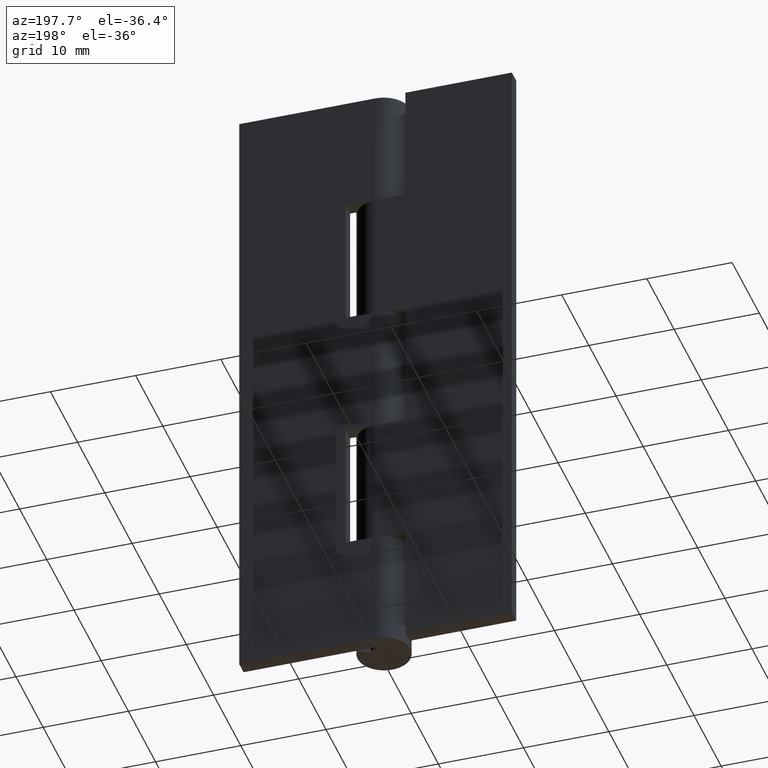
[diagram: clean part render]
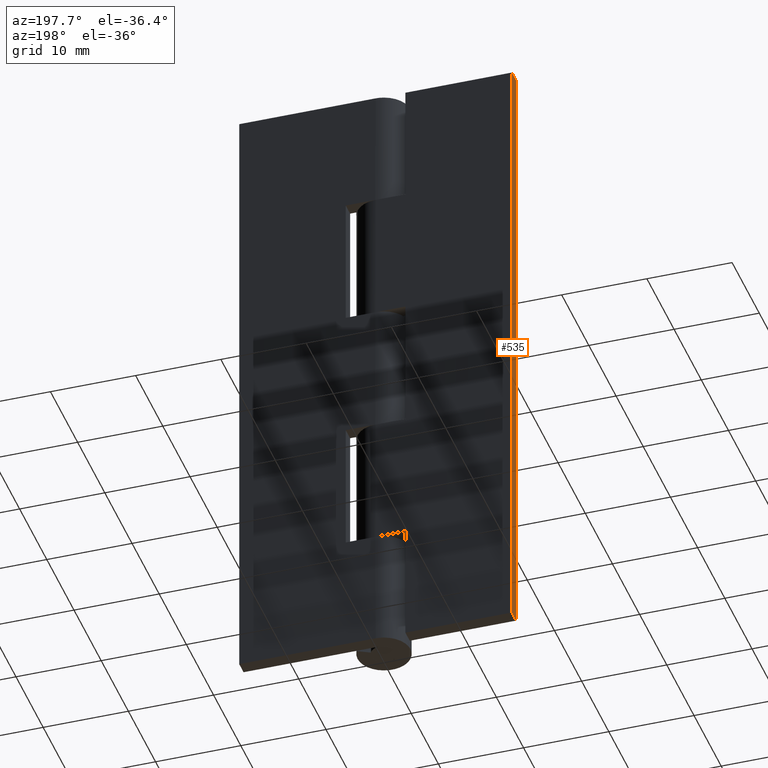
[diagram: same view with one face highlighted and labeled with its STEP entity id]
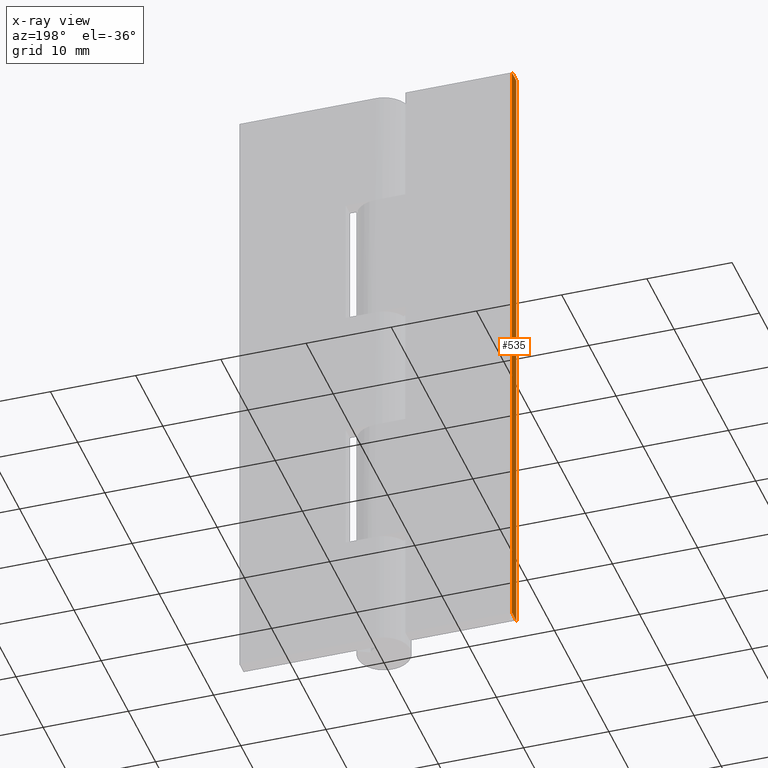
[diagram: x-ray of the same camera — body ghosted, the highlighted face saturated]
A machine part, auxiliary view. The second image highlights one B-rep face of the part: STEP entity #535.
The next image is the same camera in x-ray: the body ghosted, the highlighted face saturated — about 0% of this face is hidden behind the body in this view.
In plain terms, the highlighted face is a freeform B-spline surface patch.
Its self-contained STEP definition (entity closure, byte-faithful):
#465=CARTESIAN_POINT('',(-16.0,1.500000000000000,75.0));
#466=VERTEX_POINT('',#465);
#473=CARTESIAN_POINT('',(-16.0,3.099998000000000,75.0));
#474=VERTEX_POINT('',#473);
#480=CARTESIAN_POINT('',(-16.0,1.500000000000000,75.0));
#481=CARTESIAN_POINT('',(-16.0,3.099998000000000,75.0));
#482=QUASI_UNIFORM_CURVE('',1,(#480,#481),.UNSPECIFIED.,.F.,.U.);
#483=EDGE_CURVE('',#466,#474,#482,.T.);
#494=CARTESIAN_POINT('',(-16.0,1.500000000000000,0.0));
#495=VERTEX_POINT('',#494);
#501=CARTESIAN_POINT('',(-16.0,3.099998000000000,0.0));
#502=VERTEX_POINT('',#501);
#503=CARTESIAN_POINT('',(-16.0,1.500000000000000,0.0));
#504=CARTESIAN_POINT('',(-16.0,3.099998000000000,0.0));
#505=QUASI_UNIFORM_CURVE('',1,(#503,#504),.UNSPECIFIED.,.F.,.U.);
#506=EDGE_CURVE('',#495,#502,#505,.T.);
#516=CARTESIAN_POINT('',(-16.0,1.420080103001106,78.746249854635451));
#517=CARTESIAN_POINT('',(-16.0,1.420080103001106,-3.746251866292208));
#518=CARTESIAN_POINT('',(-16.0,3.179917939914184,78.746249854635451));
#519=CARTESIAN_POINT('',(-16.0,3.179917939914184,-3.746251866292208));
#520=B_SPLINE_SURFACE_WITH_KNOTS('',1,1,((#516,#518),(#517,#519)),.UNSPECIFIED.,.F.,.F.,.U.,(2,2),(2,2),(0.0,82.492501720927663),(0.041708334948495,0.958291687403247),.UNSPECIFIED.);
#521=ORIENTED_EDGE('',*,*,#483,.T.);
#522=CARTESIAN_POINT('',(-16.0,3.099998000000000,0.0));
#523=CARTESIAN_POINT('',(-16.0,3.099998000000000,75.0));
#524=QUASI_UNIFORM_CURVE('',1,(#522,#523),.UNSPECIFIED.,.F.,.U.);
#525=EDGE_CURVE('',#502,#474,#524,.T.);
#526=ORIENTED_EDGE('',*,*,#525,.F.);
#527=ORIENTED_EDGE('',*,*,#506,.F.);
#528=CARTESIAN_POINT('',(-16.0,1.500000000000000,0.0));
#529=CARTESIAN_POINT('',(-16.0,1.500000000000000,75.0));
#530=QUASI_UNIFORM_CURVE('',1,(#528,#529),.UNSPECIFIED.,.F.,.U.);
#531=EDGE_CURVE('',#495,#466,#530,.T.);
#532=ORIENTED_EDGE('',*,*,#531,.T.);
#533=EDGE_LOOP('',(#521,#526,#527,#532));
#534=FACE_OUTER_BOUND('',#533,.T.);
#535=ADVANCED_FACE('',(#534),#520,.F.);